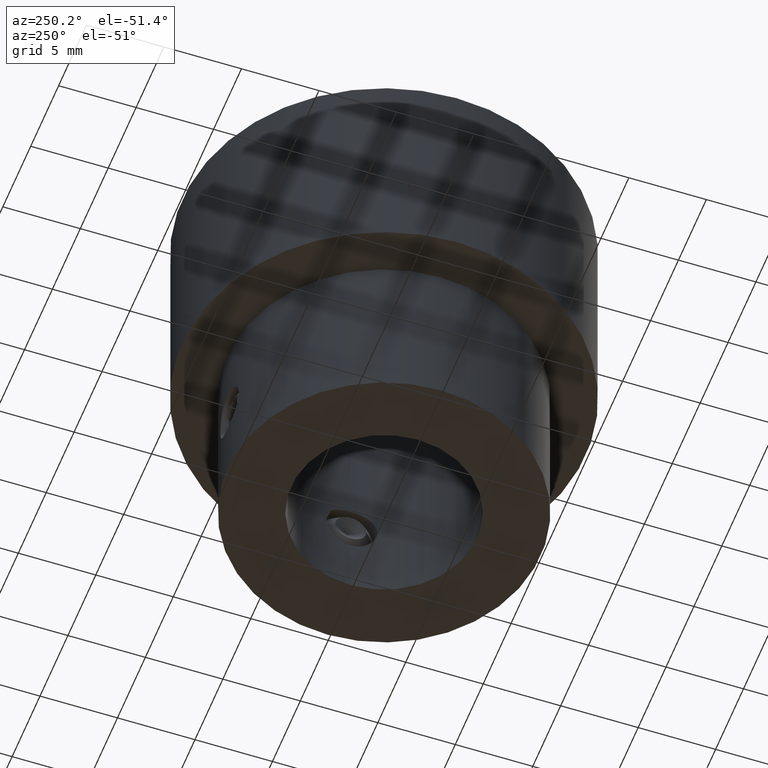
[diagram: clean part render]
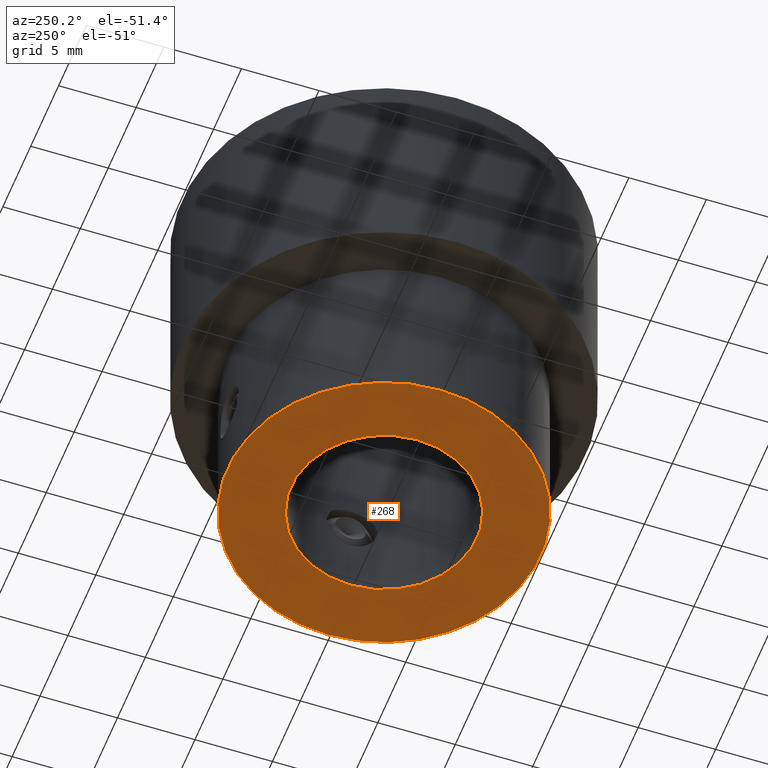
[diagram: same view with one face highlighted and labeled with its STEP entity id]
A machine part, auxiliary view. The second image highlights one B-rep face of the part: STEP entity #268.
In plain terms, the highlighted planar face has unit normal (0, 0, 1).
Its self-contained STEP definition (entity closure, byte-faithful):
#268 = ADVANCED_FACE( '', ( #323, #324 ), #325, .F. );
#323 = FACE_OUTER_BOUND( '', #415, .T. );
#324 = FACE_BOUND( '', #416, .T. );
#325 = PLANE( '', #417 );
#415 = EDGE_LOOP( '', ( #517 ) );
#416 = EDGE_LOOP( '', ( #518 ) );
#417 = AXIS2_PLACEMENT_3D( '', #519, #520, #521 );
#517 = ORIENTED_EDGE( '', *, *, #705, .F. );
#518 = ORIENTED_EDGE( '', *, *, #709, .T. );
#519 = CARTESIAN_POINT( '', ( 0.000000000000000, 0.000000000000000, -25.0000000000000 ) );
#520 = DIRECTION( '', ( 0.000000000000000, 0.000000000000000, 1.00000000000000 ) );
#521 = DIRECTION( '', ( 1.00000000000000, 0.000000000000000, 0.000000000000000 ) );
#705 = EDGE_CURVE( '', #764, #764, #765, .T. );
#709 = EDGE_CURVE( '', #772, #772, #773, .T. );
#764 = VERTEX_POINT( '', #913 );
#765 = CIRCLE( '', #914, 10.1000000000000 );
#772 = VERTEX_POINT( '', #1023 );
#773 = CIRCLE( '', #1024, 6.00000000000000 );
#913 = CARTESIAN_POINT( '', ( 10.1000000000000, 0.000000000000000, -25.0000000000000 ) );
#914 = AXIS2_PLACEMENT_3D( '', #1250, #1251, #1252 );
#1023 = CARTESIAN_POINT( '', ( 6.00000000000000, 0.000000000000000, -25.0000000000000 ) );
#1024 = AXIS2_PLACEMENT_3D( '', #1256, #1257, #1258 );
#1250 = CARTESIAN_POINT( '', ( 0.000000000000000, 0.000000000000000, -25.0000000000000 ) );
#1251 = DIRECTION( '', ( 0.000000000000000, 0.000000000000000, 1.00000000000000 ) );
#1252 = DIRECTION( '', ( 1.00000000000000, 0.000000000000000, -0.000000000000000 ) );
#1256 = CARTESIAN_POINT( '', ( 0.000000000000000, 0.000000000000000, -25.0000000000000 ) );
#1257 = DIRECTION( '', ( 0.000000000000000, 0.000000000000000, 1.00000000000000 ) );
#1258 = DIRECTION( '', ( 1.00000000000000, 0.000000000000000, 0.000000000000000 ) );